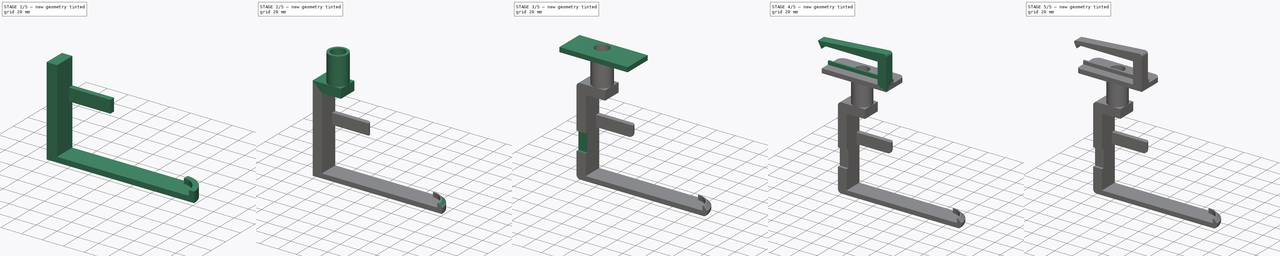
[diagram: build sequence overview — one tinted view per stage of 5, left to right]
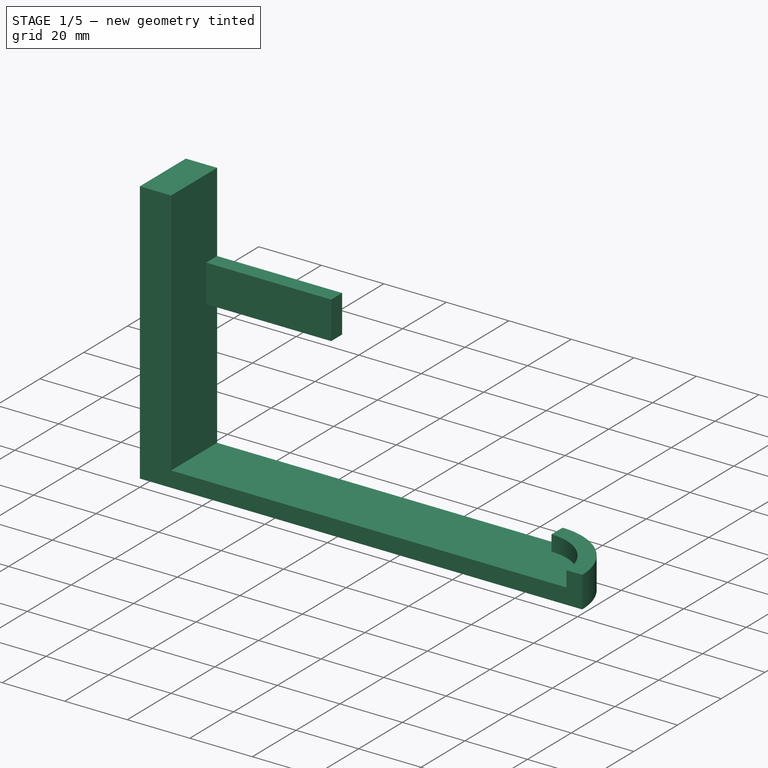
[diagram: stage 1 of 5 — iso view after this stage's code; geometry added in this stage tinted green]
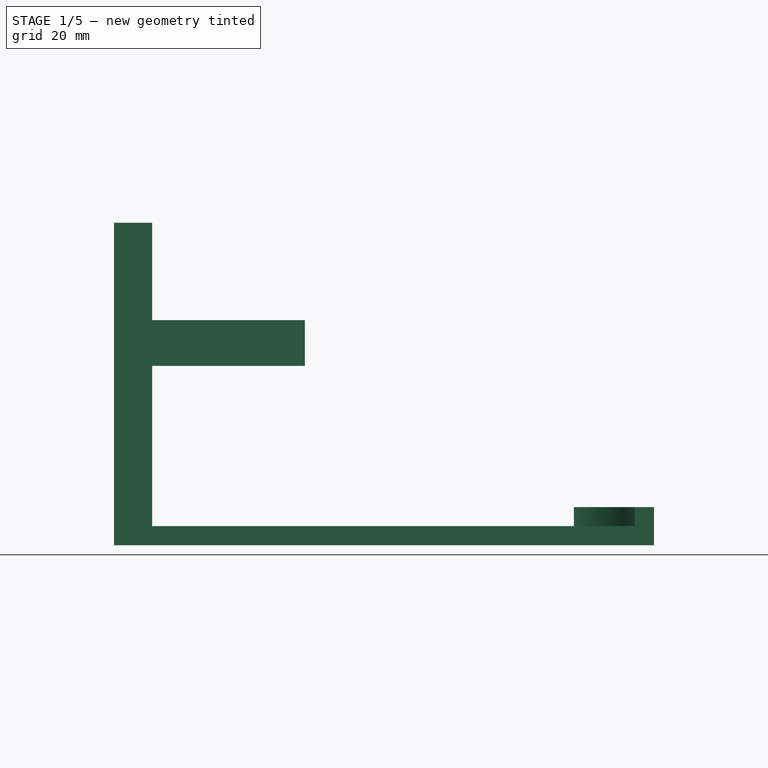
[diagram: stage 1 of 5 — front view after this stage's code; geometry added in this stage tinted green]
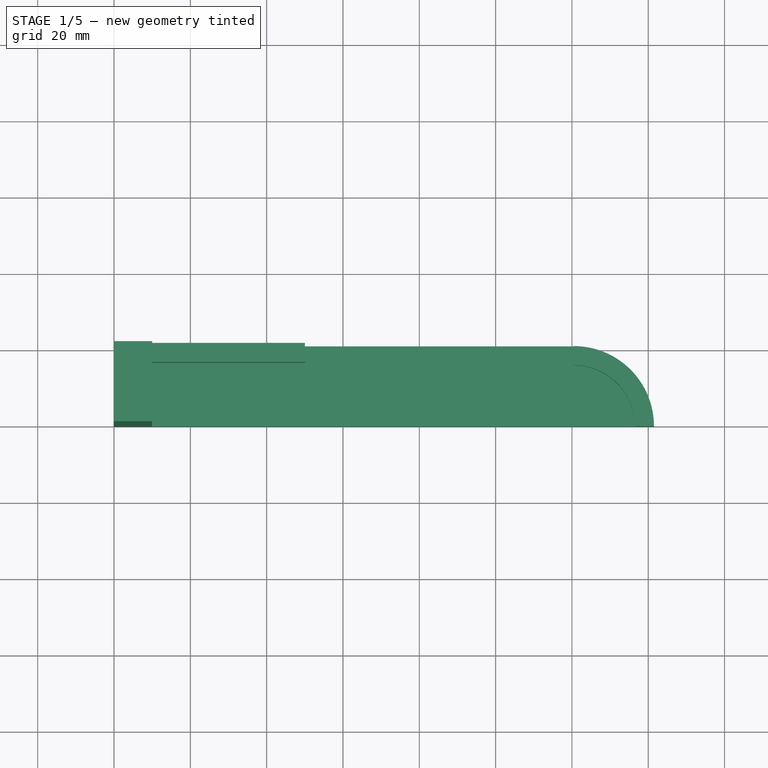
[diagram: stage 1 of 5 — top view after this stage's code; geometry added in this stage tinted green]
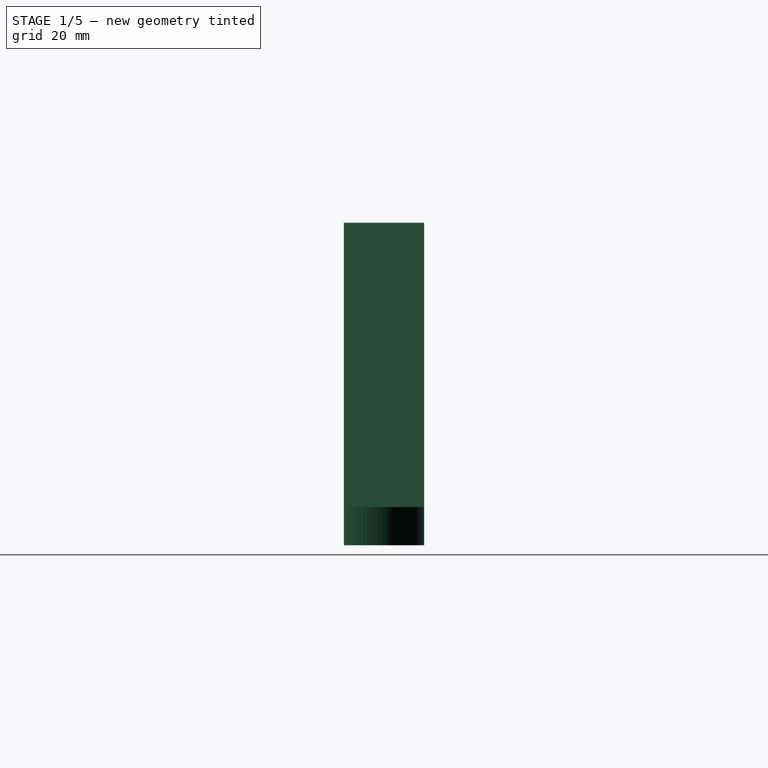
[diagram: stage 1 of 5 — right view after this stage's code; geometry added in this stage tinted green]
FCSTD DOCUMENT  (FreeCAD 1.0R)
Label: minisforum_x1_holder
License: All rights reserved
LicenseURL: https://en.wikipedia.org/wiki/All_rights_reserved
objects: PartDesign::Fillet×13, Sketcher::SketchObject×12, PartDesign::Pad×10, PartDesign::Pocket×2, Spreadsheet::Sheet×1, PartDesign::Chamfer×1, App::DocumentObjectGroup×1, PartDesign::Body×1
note: 103 computed .brp shape members not serialized (recipe doc carries the construction recipe); baked Part::Feature solids carry a one-line shape summary decoded from their .brp

FEATURE [Sketcher::SketchObject] Sketch
  ArcFitTolerance = 1e-06
  AttachmentSupport = -> [XY_Plane]
  FullyConstrained = true
  MakeInternals = false
  MapMode = 5
  expr: .Constraints.latch_edge_thickness = Spreadsheet.latch_edge_thickness
  expr: Constraints[14] = Spreadsheet.back_pillar_thickness
  sketch-geometry (11):
    g0: LineSegment StartX=0 StartY=21 StartZ=0 EndX=0 EndY=0 EndZ=0
    g1: ArcOfCircle CenterX=120.5 CenterY=0 CenterZ=0 NormalX=0 NormalY=0 NormalZ=1 AngleXU=0 Radius=21 StartAngle=0 EndAngle=1.5708
    g2: LineSegment [constr] StartX=120.5 StartY=21 StartZ=0 EndX=120.5 EndY=0 EndZ=0
    g3: LineSegment StartX=0 StartY=0 StartZ=0 EndX=10 EndY=0 EndZ=0
    g4: LineSegment StartX=0 StartY=21 StartZ=0 EndX=10 EndY=21 EndZ=0
    g5: LineSegment StartX=10 StartY=21 StartZ=0 EndX=120.5 EndY=21 EndZ=0
    g6: LineSegment [constr] StartX=10 StartY=21 StartZ=0 EndX=10 EndY=0 EndZ=0
    g7: LineSegment StartX=141.5 StartY=0 StartZ=0 EndX=136.5 EndY=0 EndZ=0
    g8: LineSegment StartX=136.5 StartY=0 StartZ=0 EndX=10 EndY=0 EndZ=0
    g9: LineSegment [constr] StartX=136.5 StartY=0 StartZ=0 EndX=136.5 EndY=21 EndZ=0
    g10: LineSegment [constr] StartX=120.5 StartY=21 StartZ=0 EndX=136.5 EndY=21 EndZ=0
  constraints (29):
    c: Vertical(g0)
    c: Coincident(g2,g1)
    c: Coincident(g2,g1)
    c: Vertical(g2)
    c: Coincident(g3,g0)
    c: PointOnObject(g3,g-1)
    c: Coincident(g4,g0)
    c: Horizontal(g4)
    c: Coincident(g5,g4)
    c: Coincident(g5,g1)
    c: Horizontal(g5)
    c: Coincident(g6,g4)
    c: Coincident(g6,g3)
    c: Vertical(g6)
    c: Distance(g3,g3) = 10
    c: Coincident(g7,g1)
    c: PointOnObject(g7,g-1)
    c: Coincident(g8,g7)
    c: Coincident(g8,g3)
    c: Distance(g7,g7) = 5  'latch_edge_thickness'
    c: DistanceX(g8,g8) = 126.5
    c: PointOnObject(g1,g-1)
    c: PointOnObject(g1,g-1)
    c: Vertical(g9)
    c: Coincident(g9,g7)
    c: Tangent(g10,g1) = 1.5708
    c: Coincident(g10,g9)
    c: DistanceX(g10,g10) = 16
    c: Coincident(g0,g-1)
FEATURE [PartDesign::Pad] Pad
  Direction = (0,0,1)
  Length = 5
  Length2 = 10
  Profile = -> Sketch
  ReferenceAxis = -> Sketch [N_Axis]
  Refine = true
  Suppressed = false
  Type = 0
FEATURE [Sketcher::SketchObject] Sketch001
  ArcFitTolerance = 1e-06
  AttachmentSupport = -> [Pad]
  ExternalGeometry = -> [Pad]
  FullyConstrained = true
  MakeInternals = false
  MapMode = 5
  Placement = pos=(0,0,5) rot=(0,0,1;0rad)
  expr: Constraints[10] = Spreadsheet.back_pillar_thickness
  sketch-geometry (4):
    g0: LineSegment StartX=0 StartY=0 StartZ=0 EndX=10 EndY=0 EndZ=0
    g1: LineSegment StartX=10 StartY=0 StartZ=0 EndX=10 EndY=21 EndZ=0
    g2: LineSegment StartX=10 StartY=21 StartZ=0 EndX=0 EndY=21 EndZ=0
    g3: LineSegment StartX=0 StartY=21 StartZ=0 EndX=0 EndY=0 EndZ=0
  constraints (11):
    c: Coincident(g0,g1)
    c: Coincident(g1,g2)
    c: Coincident(g2,g3)
    c: Coincident(g3,g0)
    c: Horizontal(g0)
    c: Horizontal(g2)
    c: Vertical(g1)
    c: Vertical(g3)
    c: Coincident(g0,g-1)
    c: PointOnObject(g1,g-3)
    c: Distance(g2,g2) = 10
FEATURE [Spreadsheet::Sheet] Spreadsheet
  cells = A1(back_pillar_thickness)==10 mm; A2(latch_edge_thickness)==5 mm; A3(bottom_plane_thickness)==10 mm
FEATURE [PartDesign::Pad] Pad001
  BaseFeature = -> Pad
  Direction = (0,0,1)
  Length = 54
  Length2 = 10
  Profile = -> Sketch001
  ReferenceAxis = -> Sketch001 [N_Axis]
  Refine = true
  Suppressed = false
  Type = 0
FEATURE [Sketcher::SketchObject] Sketch002
  ArcFitTolerance = 1e-06
  AttachmentSupport = -> [Pad001]
  ExternalGeometry = -> [Pad001]
  FullyConstrained = true
  MakeInternals = false
  MapMode = 5
  Placement = pos=(0,0,5) rot=(0,0,1;0rad)
  expr: Constraints[4] = Spreadsheet.latch_edge_thickness
  sketch-geometry (5):
    g0: LineSegment [constr] StartX=120.5 StartY=0 StartZ=0 EndX=120.5 EndY=16 EndZ=0
    g1: ArcOfCircle CenterX=120.5 CenterY=0 CenterZ=0 NormalX=0 NormalY=0 NormalZ=1 AngleXU=0 Radius=16 StartAngle=0 EndAngle=1.5708
    g2: LineSegment StartX=136.5 StartY=0 StartZ=0 EndX=141.5 EndY=0 EndZ=0
    g3: ArcOfCircle CenterX=120.5 CenterY=0 CenterZ=0 NormalX=0 NormalY=0 NormalZ=1 AngleXU=0 Radius=21 StartAngle=0 EndAngle=1.5708
    g4: LineSegment StartX=120.5 StartY=16 StartZ=0 EndX=120.5 EndY=21 EndZ=0
  constraints (13):
    c: Coincident(g0,g-4)
    c: Vertical(g0)
    c: Coincident(g1,g0)
    c: PointOnObject(g1,g-1)
    c: Distance(g0,g3) = 5
    c: Coincident(g2,g1)
    c: Coincident(g3,g2)
    c: Coincident(g2,g-4)
    c: Coincident(g3,g0)
    c: Coincident(g4,g1)
    c: Coincident(g4,g3)
    c: Vertical(g4)
    c: Coincident(g1,g0)
FEATURE [PartDesign::Pad] Pad002
  BaseFeature = -> Pad001
  Direction = (0,0,1)
  Length = 5
  Length2 = 10
  Profile = -> Sketch002
  ReferenceAxis = -> Sketch002 [N_Axis]
  Refine = true
  Suppressed = false
  Type = 0
FEATURE [Sketcher::SketchObject] Sketch004
  ArcFitTolerance = 1e-06
  AttachmentSupport = -> [Pad002]
  ExternalGeometry = -> [Pad002]
  FullyConstrained = true
  MakeInternals = false
  MapMode = 5
  Placement = pos=(10,0,0) rot=(0.57735,0.57735,0.57735;2.0944rad)
  expr: Constraints[9] = Spreadsheet.latch_edge_thickness
  sketch-geometry (4):
    g0: LineSegment StartX=21 StartY=59 StartZ=0 EndX=16 EndY=59 EndZ=0
    g1: LineSegment StartX=16 StartY=59 StartZ=0 EndX=16 EndY=47 EndZ=0
    g2: LineSegment StartX=16 StartY=47 StartZ=0 EndX=21 EndY=47 EndZ=0
    g3: LineSegment StartX=21 StartY=47 StartZ=0 EndX=21 EndY=59 EndZ=0
  constraints (11):
    c: Coincident(g0,g1)
    c: Coincident(g1,g2)
    c: Coincident(g2,g3)
    c: Coincident(g3,g0)
    c: Horizontal(g0)
    c: Horizontal(g2)
    c: Vertical(g1)
    c: Vertical(g3)
    c: Coincident(g0,g-3)
    c: Distance(g0,g0) = 5
    c: Distance(g3,g3) = 12
FEATURE [PartDesign::Pad] Pad003
  BaseFeature = -> Pad002
  Direction = (1,0,0)
  Length = 40
  Length2 = 10
  Profile = -> Sketch004
  ReferenceAxis = -> Sketch004 [N_Axis]
  Refine = true
  Suppressed = false
  Type = 0
FEATURE [Sketcher::SketchObject] Sketch005
  ArcFitTolerance = 1e-06
  AttachmentSupport = -> [Pad003]
  ExternalGeometry = -> [Pad003]
  FullyConstrained = true
  MakeInternals = false
  MapMode = 5
  Placement = pos=(0,0,59) rot=(0,0,1;0rad)
  sketch-geometry (4):
    g0: LineSegment StartX=0 StartY=0 StartZ=0 EndX=10 EndY=0 EndZ=0
    g1: LineSegment StartX=10 StartY=0 StartZ=0 EndX=10 EndY=21 EndZ=0
    g2: LineSegment StartX=10 StartY=21 StartZ=0 EndX=0 EndY=21 EndZ=0
    g3: LineSegment StartX=0 StartY=21 StartZ=0 EndX=0 EndY=0 EndZ=0
  constraints (11):
    c: Coincident(g0,g1)
    c: Coincident(g1,g2)
    c: Coincident(g2,g3)
    c: Coincident(g3,g0)
    c: Horizontal(g0)
    c: Horizontal(g2)
    c: Vertical(g1)
    c: Vertical(g3)
    c: Coincident(g0,g-1)
    c: PointOnObject(g1,g-4)
    c: PointOnObject(g-3,g1)
FEATURE [PartDesign::Pad] Pad004
  BaseFeature = -> Pad003
  Direction = (0,0,1)
  Length = 25.5
  Length2 = 10
  Profile = -> Sketch005
  ReferenceAxis = -> Sketch005 [N_Axis]
  Refine = true
  Suppressed = false
  Type = 0
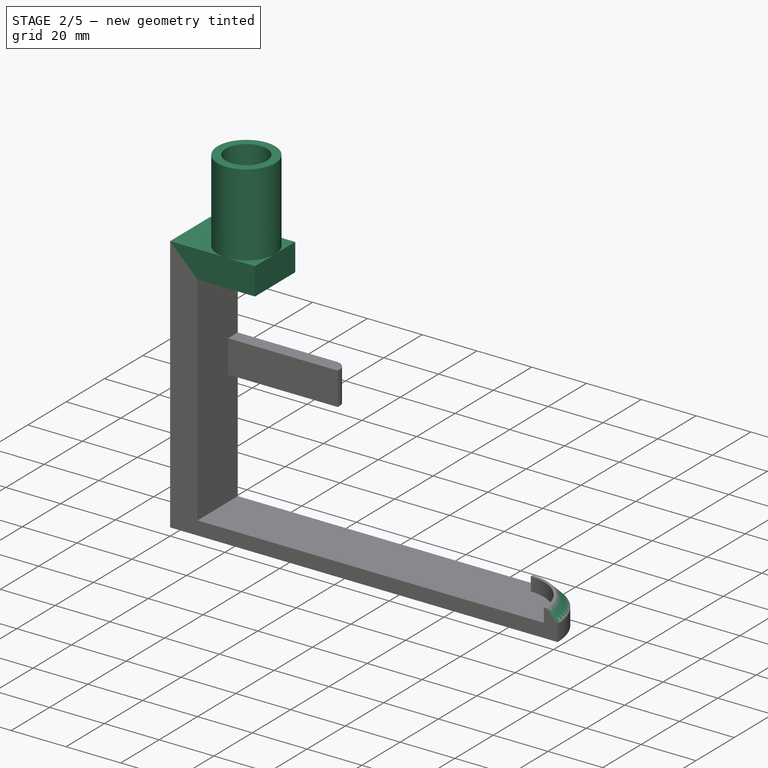
[diagram: stage 2 of 5 — iso view after this stage's code; geometry added in this stage tinted green]
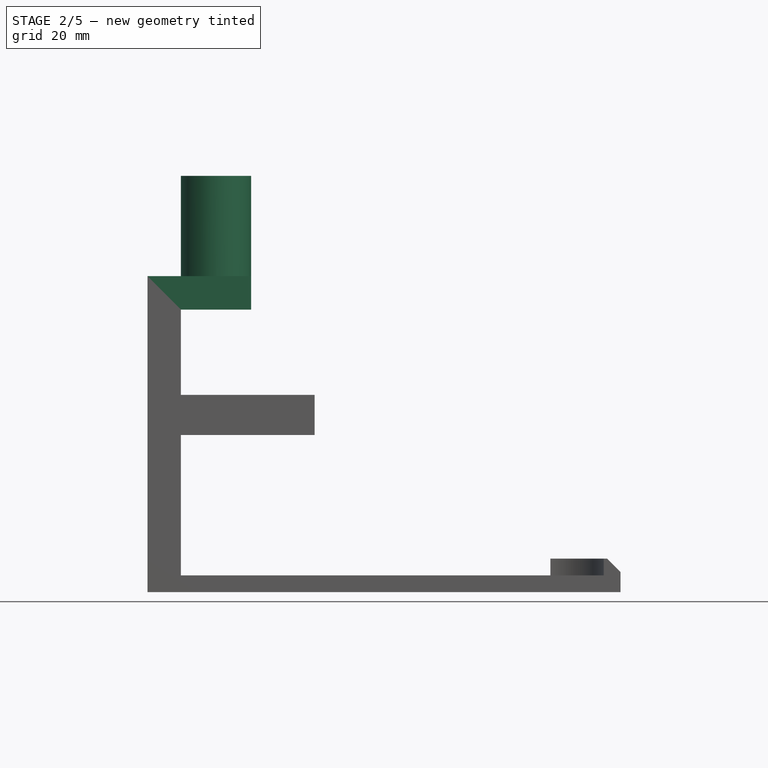
[diagram: stage 2 of 5 — front view after this stage's code; geometry added in this stage tinted green]
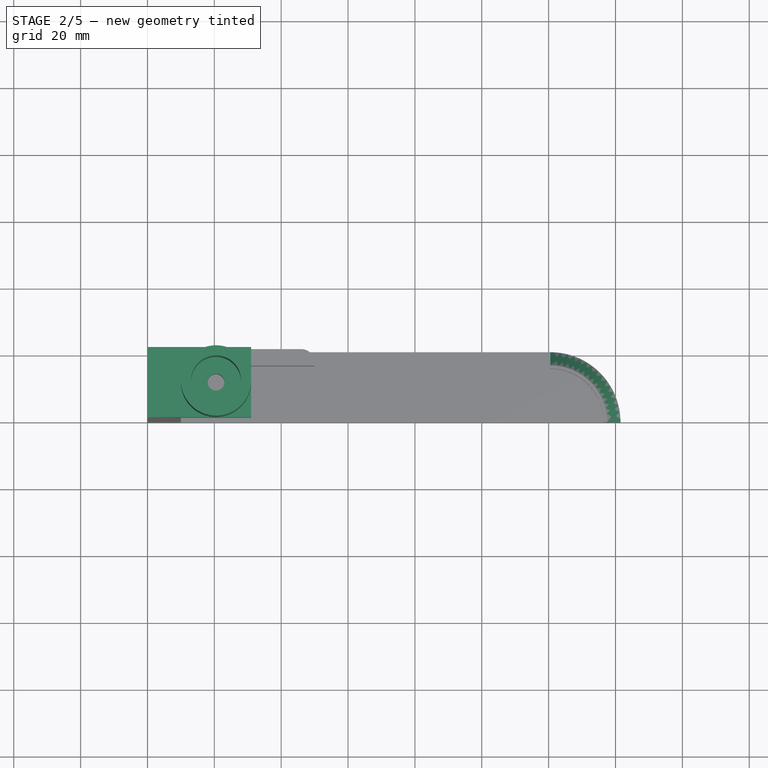
[diagram: stage 2 of 5 — top view after this stage's code; geometry added in this stage tinted green]
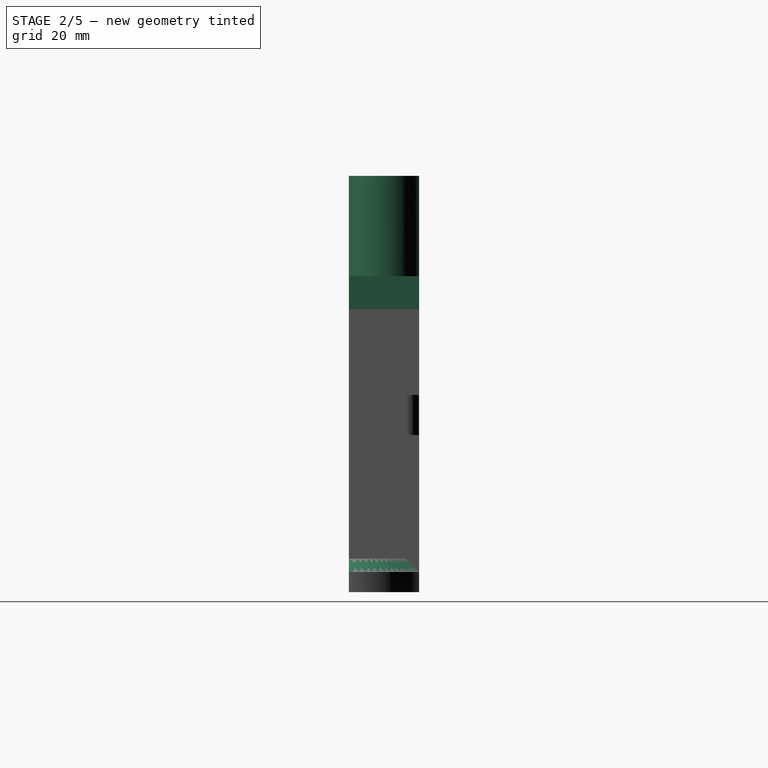
[diagram: stage 2 of 5 — right view after this stage's code; geometry added in this stage tinted green]
FEATURE [Sketcher::SketchObject] Sketch006
  ArcFitTolerance = 1e-06
  AttachmentSupport = -> [Pad004]
  ExternalGeometry = -> [Pad004]
  FullyConstrained = true
  MakeInternals = false
  MapMode = 5
  Placement = pos=(0,0,84.5) rot=(0,0,1;0rad)
  sketch-geometry (5):
    g0: LineSegment StartX=0 StartY=0 StartZ=0 EndX=31 EndY=0 EndZ=0
    g1: LineSegment StartX=31 StartY=0 StartZ=0 EndX=31 EndY=21 EndZ=0
    g2: LineSegment StartX=0 StartY=21 StartZ=0 EndX=0 EndY=0 EndZ=0
    g3: LineSegment StartX=0 StartY=21 StartZ=0 EndX=10 EndY=21 EndZ=0
    g4: LineSegment StartX=10 StartY=21 StartZ=0 EndX=31 EndY=21 EndZ=0
  constraints (13):
    c: Coincident(g0,g1)
    c: Coincident(g2,g0)
    c: Horizontal(g0)
    c: Vertical(g1)
    c: Vertical(g2)
    c: Coincident(g0,g-1)
    c: Coincident(g3,g2)
    c: Coincident(g3,g-3)
    c: Horizontal(g3)
    c: Coincident(g4,g3)
    c: Coincident(g4,g1)
    c: Horizontal(g4)
    c: Equal(g4,g1)
FEATURE [PartDesign::Pad] Pad005
  BaseFeature = -> Pad004
  Direction = (0,0,1)
  Length = 10
  Length2 = 10
  Profile = -> Sketch006
  ReferenceAxis = -> Sketch006 [N_Axis]
  Refine = true
  Suppressed = false
  Type = 0
  expr: Length = Spreadsheet.bottom_plane_thickness
FEATURE [Sketcher::SketchObject] Sketch007
  ArcFitTolerance = 1e-06
  AttachmentSupport = -> [Pad005]
  ExternalGeometry = -> [Pad005]
  FullyConstrained = true
  MakeInternals = false
  MapMode = 5
  Placement = pos=(0,0,94.5) rot=(0,0,1;0rad)
  sketch-geometry (8):
    g0: LineSegment [constr] StartX=31 StartY=21 StartZ=0 EndX=10 EndY=21 EndZ=0
    g1: LineSegment [constr] StartX=10 StartY=21 StartZ=0 EndX=10 EndY=0 EndZ=0
    g2: LineSegment [constr] StartX=10 StartY=0 StartZ=0 EndX=31 EndY=0 EndZ=0
    g3: LineSegment [constr] StartX=31 StartY=0 StartZ=0 EndX=31 EndY=21 EndZ=0
    g4: LineSegment [constr] StartX=10 StartY=21 StartZ=0 EndX=20.5 EndY=10.5 EndZ=0
    g5: LineSegment [constr] StartX=20.5 StartY=10.5 StartZ=0 EndX=31 EndY=0 EndZ=0
    g6: LineSegment [constr] StartX=20.5 StartY=10.5 StartZ=0 EndX=10 EndY=0 EndZ=0
    g7: Circle CenterX=20.5 CenterY=10.5 CenterZ=0 NormalX=0 NormalY=0 NormalZ=1 AngleXU=0 Radius=2.5
  constraints (20):
    c: Coincident(g0,g1)
    c: Coincident(g1,g2)
    c: Coincident(g2,g3)
    c: Coincident(g3,g0)
    c: Horizontal(g0)
    c: Horizontal(g2)
    c: Vertical(g1)
    c: Vertical(g3)
    c: Coincident(g0,g-3)
    c: PointOnObject(g1,g-1)
    c: Equal(g1,g0)
    c: Coincident(g4,g0)
    c: Coincident(g5,g4)
    c: Coincident(g5,g2)
    c: Coincident(g6,g4)
    c: Coincident(g6,g1)
    c: Equal(g6,g4)
    c: Equal(g4,g5)
    c: Coincident(g7,g4)
    c: Diameter(g7) = 5
FEATURE [PartDesign::Pocket] Pocket
  BaseFeature = -> Pad005
  Direction = (0,0,-1)
  Length = 10
  Length2 = 5
  Profile = -> Sketch007
  ReferenceAxis = -> Sketch007 [N_Axis]
  Refine = true
  Suppressed = false
  Type = 0
  expr: Length = Spreadsheet.bottom_plane_thickness
FEATURE [Sketcher::SketchObject] Sketch008
  ArcFitTolerance = 1e-06
  AttachmentSupport = -> [Pocket]
  ExternalGeometry = -> [Pocket]
  FullyConstrained = true
  MakeInternals = false
  MapMode = 5
  Placement = pos=(0,0,94.5) rot=(0,0,1;0rad)
  sketch-geometry (4):
    g0: Circle CenterX=20.5 CenterY=10.5 CenterZ=0 NormalX=0 NormalY=0 NormalZ=1 AngleXU=0 Radius=10.5
    g1: Circle CenterX=20.5 CenterY=10.5 CenterZ=0 NormalX=0 NormalY=0 NormalZ=1 AngleXU=0 Radius=7.5
    g2: LineSegment [constr] StartX=20.5 StartY=10.5 StartZ=0 EndX=20.5 EndY=18 EndZ=0
    g3: LineSegment [constr] StartX=20.5 StartY=18 StartZ=0 EndX=20.5 EndY=21 EndZ=0
  constraints (10):
    c: Coincident(g0,g-3)
    c: Tangent(g0,g-4)
    c: Coincident(g1,g0)
    c: Coincident(g2,g0)
    c: PointOnObject(g2,g1)
    c: Vertical(g2)
    c: Coincident(g3,g2)
    c: PointOnObject(g3,g0)
    c: Vertical(g3)
    c: Distance(g3,g3) = 3
FEATURE [PartDesign::Pad] Pad006
  BaseFeature = -> Pocket
  Direction = (0,0,1)
  Length = 30
  Length2 = 10
  Profile = -> Sketch008
  ReferenceAxis = -> Sketch008 [N_Axis]
  Refine = true
  Suppressed = false
  Type = 0
FEATURE [PartDesign::Chamfer] Chamfer
  Angle = 45
  Base = -> Pad006 [Edge5]
  BaseFeature = -> Pad006
  ChamferType = 0
  FlipDirection = false
  Refine = true
  Size = 4
  Size2 = 1
  SupportTransform = false
  Suppressed = false
  UseAllEdges = false
FEATURE [App::DocumentObjectGroup] Measurements
FEATURE [PartDesign::Fillet] Fillet
  Base = -> Chamfer [Edge19]
  BaseFeature = -> Chamfer
  Radius = 4
  Refine = true
  SupportTransform = false
  Suppressed = false
  UseAllEdges = false
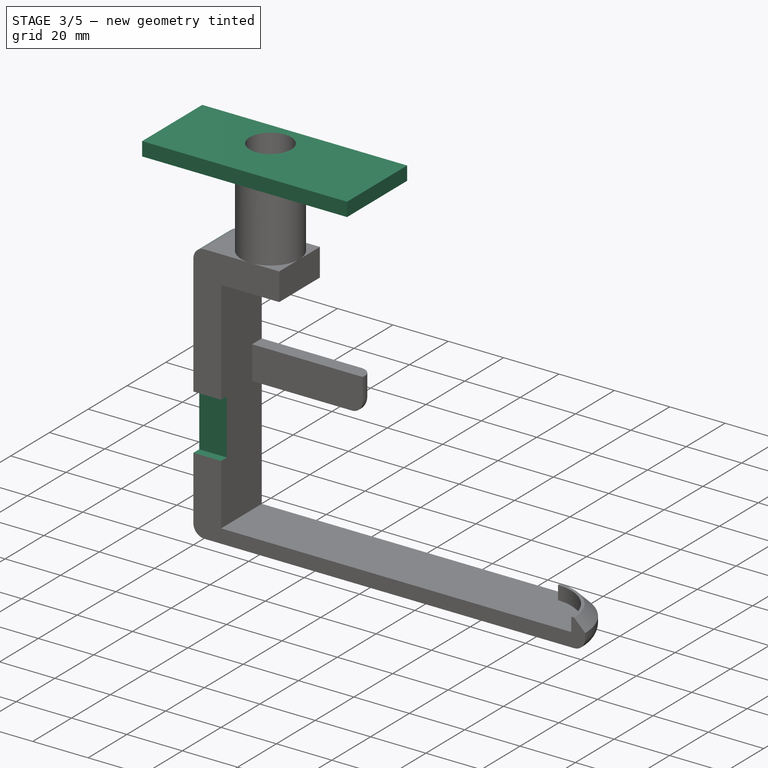
[diagram: stage 3 of 5 — iso view after this stage's code; geometry added in this stage tinted green]
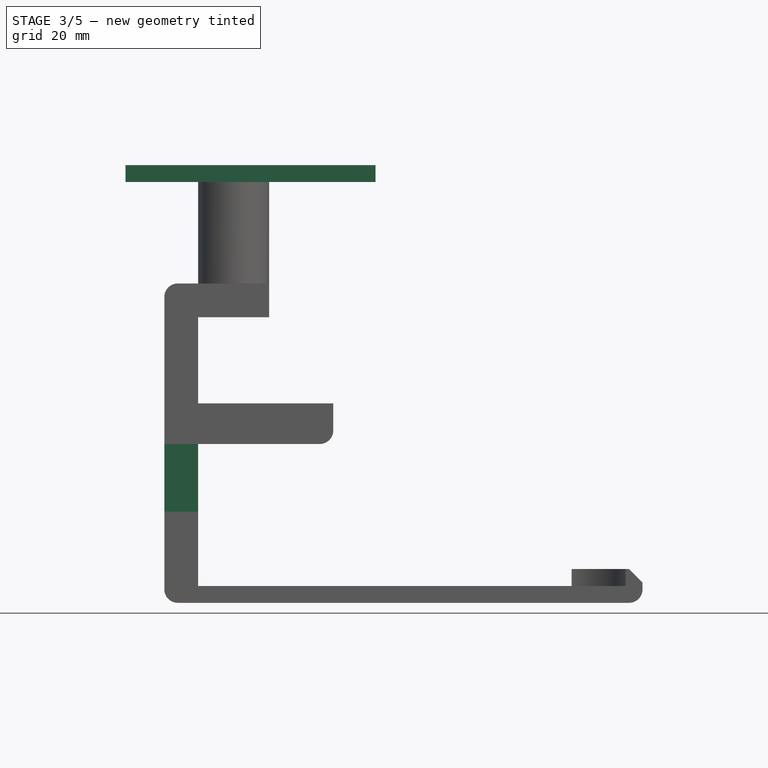
[diagram: stage 3 of 5 — front view after this stage's code; geometry added in this stage tinted green]
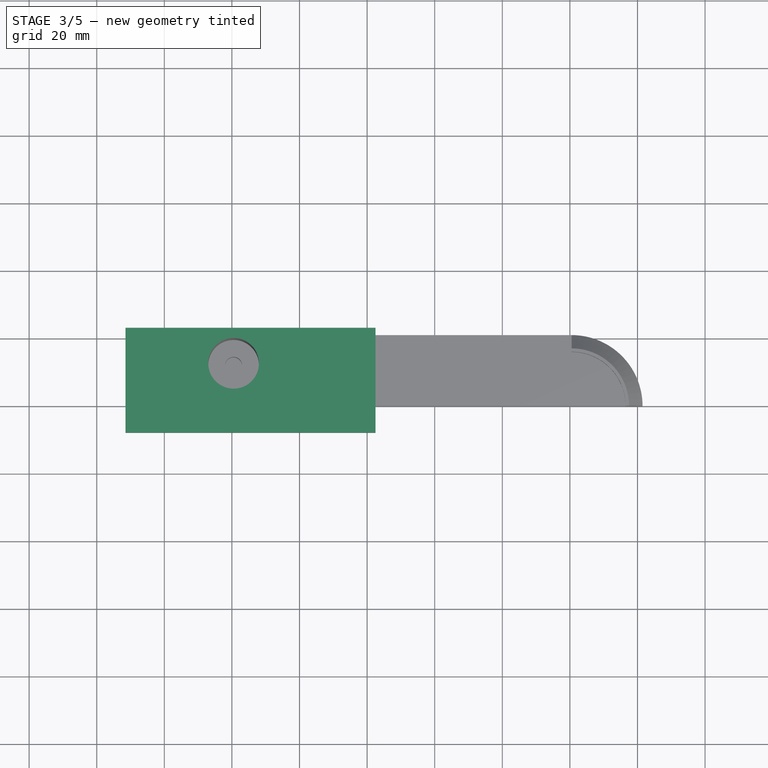
[diagram: stage 3 of 5 — top view after this stage's code; geometry added in this stage tinted green]
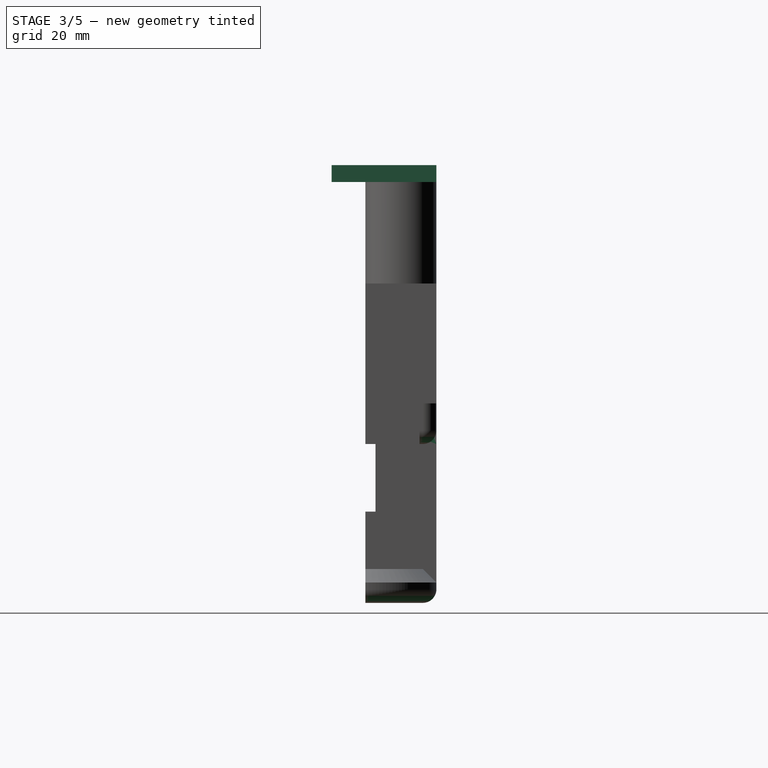
[diagram: stage 3 of 5 — right view after this stage's code; geometry added in this stage tinted green]
FEATURE [PartDesign::Fillet] Fillet001
  Base = -> Fillet [Edge44]
  BaseFeature = -> Fillet
  Radius = 4
  Refine = true
  SupportTransform = false
  Suppressed = false
  UseAllEdges = false
FEATURE [PartDesign::Fillet] Fillet002
  Base = -> Fillet001 [Edge4]
  BaseFeature = -> Fillet001
  Radius = 4
  Refine = true
  SupportTransform = false
  Suppressed = false
  UseAllEdges = false
FEATURE [Sketcher::SketchObject] Sketch009
  ArcFitTolerance = 1e-06
  AttachmentSupport = -> [Fillet002]
  ExternalGeometry = -> [Fillet002]
  FullyConstrained = true
  MakeInternals = false
  MapMode = 5
  Placement = pos=(10,0,0) rot=(0.57735,0.57735,0.57735;2.0944rad)
  sketch-geometry (6):
    g0: LineSegment [constr] StartX=16 StartY=59 StartZ=0 EndX=0 EndY=59 EndZ=0
    g1: LineSegment StartX=0 StartY=47 StartZ=0 EndX=0 EndY=27 EndZ=0
    g2: LineSegment StartX=0 StartY=27 StartZ=0 EndX=3 EndY=27 EndZ=0
    g3: LineSegment StartX=3 StartY=27 StartZ=0 EndX=3 EndY=47 EndZ=0
    g4: LineSegment StartX=3 StartY=47 StartZ=0 EndX=0 EndY=47 EndZ=0
    g5: LineSegment [constr] StartX=3 StartY=47 StartZ=0 EndX=3 EndY=59 EndZ=0
  constraints (18):
    c: PointOnObject(g0,g-2)
    c: Horizontal(g0)
    c: Coincident(g1,g2)
    c: Coincident(g2,g3)
    c: Coincident(g3,g4)
    c: Coincident(g4,g1)
    c: Vertical(g1)
    c: Vertical(g3)
    c: Horizontal(g2)
    c: Horizontal(g4)
    c: PointOnObject(g1,g-2)
    c: Distance(g2,g2) = 3
    c: Coincident(g5,g3)
    c: PointOnObject(g5,g0)
    c: Vertical(g5)
    c: DistanceY(g5,g5) = 12
    c: DistanceY(g1,g1) = 20
    c: Coincident(g0,g-3)
FEATURE [PartDesign::Pocket] Pocket001
  BaseFeature = -> Fillet002
  Direction = (-1,0,0)
  Length = 10
  Length2 = 5
  Profile = -> Sketch009
  ReferenceAxis = -> Sketch009 [N_Axis]
  Refine = true
  Suppressed = false
  Type = 0
  expr: Length = Spreadsheet.back_pillar_thickness
FEATURE [Sketcher::SketchObject] Sketch010
  ArcFitTolerance = 1e-06
  AttachmentSupport = -> [Pocket001]
  ExternalGeometry = -> [Pocket001]
  FullyConstrained = true
  MakeInternals = false
  MapMode = 5
  Placement = pos=(0,0,124.5) rot=(0,0,1;0rad)
  expr: Constraints[23] = 5 mm + Spreadsheet.latch_edge_thickness
  sketch-geometry (11):
    g0: LineSegment StartX=-11.5 StartY=-10 StartZ=0 EndX=52.5 EndY=-10 EndZ=0
    g1: LineSegment [constr] StartX=52.5 StartY=-10 StartZ=0 EndX=52.5 EndY=21 EndZ=0
    g2: LineSegment StartX=-11.5 StartY=21 StartZ=0 EndX=-11.5 EndY=-10 EndZ=0
    g3: Circle CenterX=20.5 CenterY=10.5 CenterZ=0 NormalX=0 NormalY=0 NormalZ=1 AngleXU=0 Radius=7.5
    g4: LineSegment [constr] StartX=-11.5 StartY=21 StartZ=0 EndX=20.5 EndY=10.5 EndZ=0
    g5: LineSegment StartX=52.5 StartY=21 StartZ=0 EndX=62.5 EndY=21 EndZ=0
    g6: LineSegment StartX=62.5 StartY=21 StartZ=0 EndX=62.5 EndY=-10 EndZ=0
    g7: LineSegment StartX=62.5 StartY=-10 StartZ=0 EndX=52.5 EndY=-10 EndZ=0
    g8: LineSegment [constr] StartX=20.5 StartY=10.5 StartZ=0 EndX=52.5 EndY=21 EndZ=0
    g9: LineSegment [constr] StartX=0 StartY=0 StartZ=0 EndX=0 EndY=-10 EndZ=0
    g10: LineSegment StartX=-11.5 StartY=21 StartZ=0 EndX=52.5 EndY=21 EndZ=0
  constraints (29):
    c: Coincident(g0,g1)
    c: Coincident(g2,g0)
    c: Horizontal(g0)
    c: Vertical(g1)
    c: Vertical(g2)
    c: Coincident(g3,g-3)
    c: Equal(g3,g-3)
    c: DistanceX(g0,g0) = 64
    c: Coincident(g4,g3)
    c: Coincident(g1,g5)
    c: Horizontal(g5)
    c: Coincident(g5,g6)
    c: Vertical(g6)
    c: Coincident(g6,g7)
    c: Coincident(g7,g0)
    c: Horizontal(g7)
    c: Distance(g5,g5) = 10
    c: Coincident(g8,g3)
    c: Coincident(g8,g1)
    c: Equal(g8,g4)
    c: Coincident(g9,g-1)
    c: PointOnObject(g9,g0)
    c: Vertical(g9)
    c: Distance(g9,g9) = 10
    c: Coincident(g10,g1)
    c: Coincident(g4,g2)
    c: Coincident(g2,g10)
    c: PointOnObject(g-4,g10)
    c: Horizontal(g10)
FEATURE [PartDesign::Pad] Pad007
  BaseFeature = -> Pocket001
  Direction = (0,0,1)
  Length = 5
  Length2 = 10
  Profile = -> Sketch010
  ReferenceAxis = -> Sketch010 [N_Axis]
  Refine = true
  Suppressed = false
  Type = 0
FEATURE [PartDesign::Fillet] Fillet003
  Base = -> Pad007 [Edge37]
  BaseFeature = -> Pad007
  Radius = 4
  Refine = true
  SupportTransform = false
  Suppressed = false
  UseAllEdges = false
FEATURE [PartDesign::Fillet] Fillet004
  Base = -> Fillet003 [Edge11]
  BaseFeature = -> Fillet003
  Radius = 4
  Refine = true
  SupportTransform = false
  Suppressed = false
  UseAllEdges = false
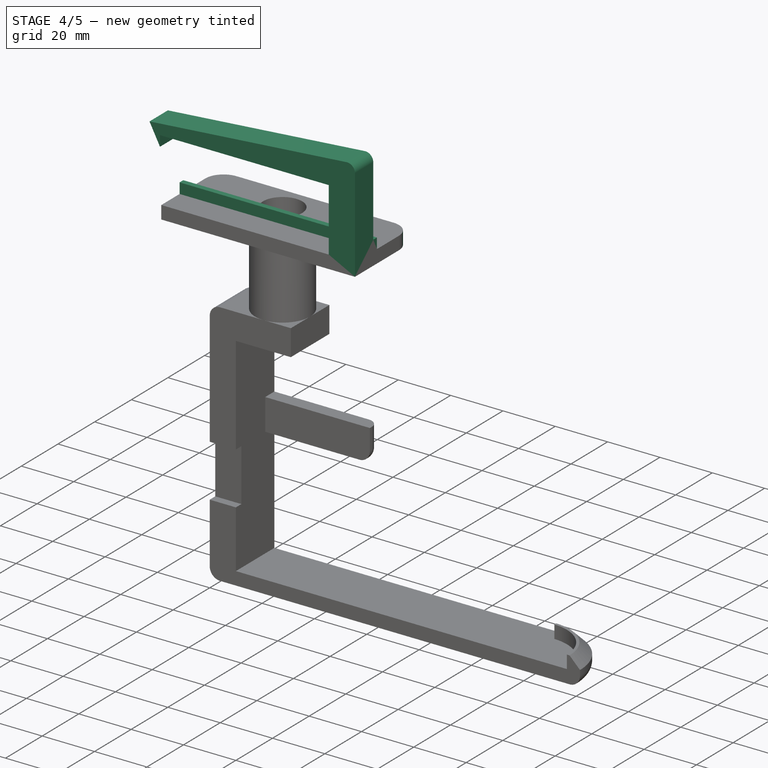
[diagram: stage 4 of 5 — iso view after this stage's code; geometry added in this stage tinted green]
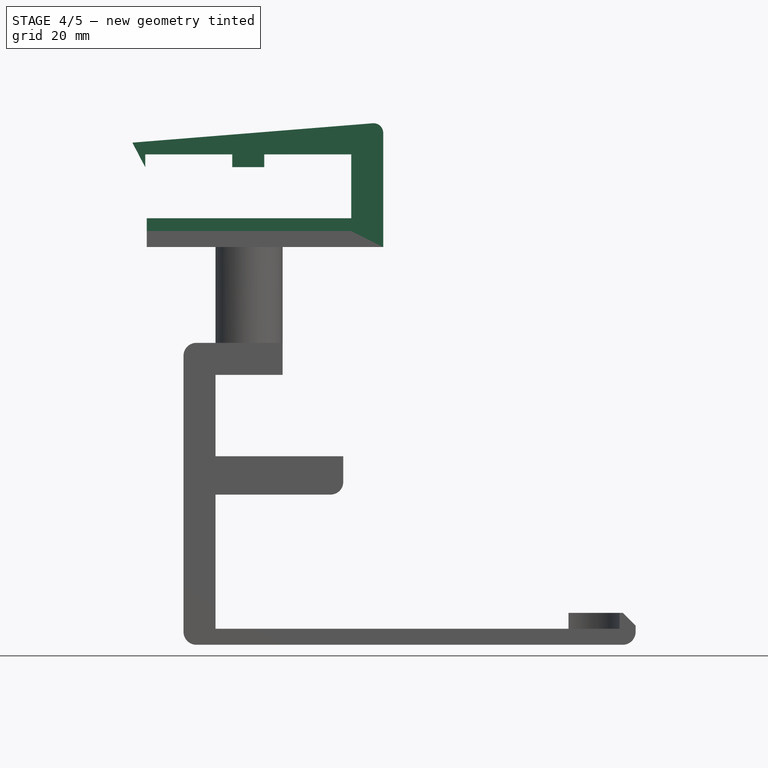
[diagram: stage 4 of 5 — front view after this stage's code; geometry added in this stage tinted green]
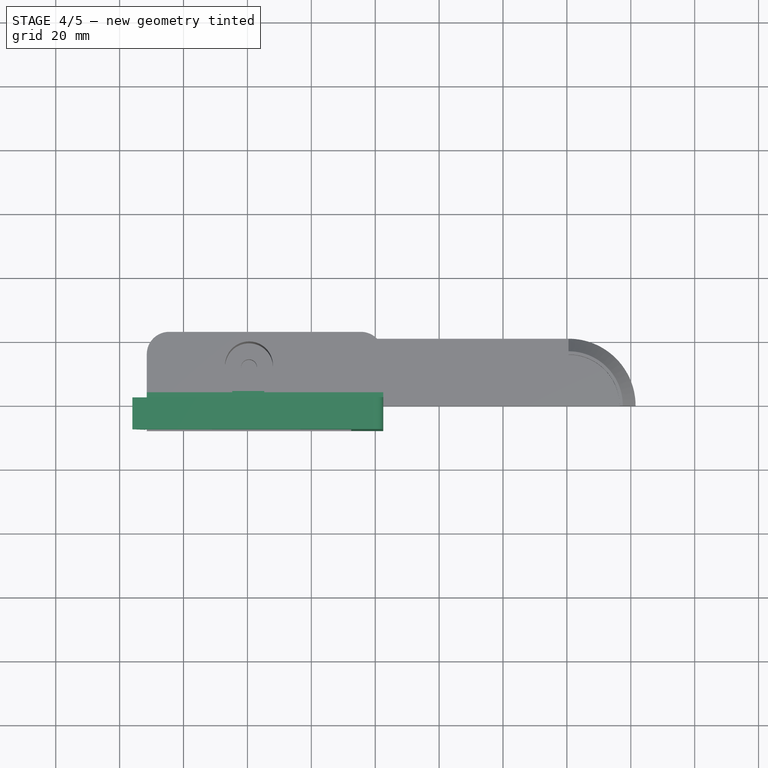
[diagram: stage 4 of 5 — top view after this stage's code; geometry added in this stage tinted green]
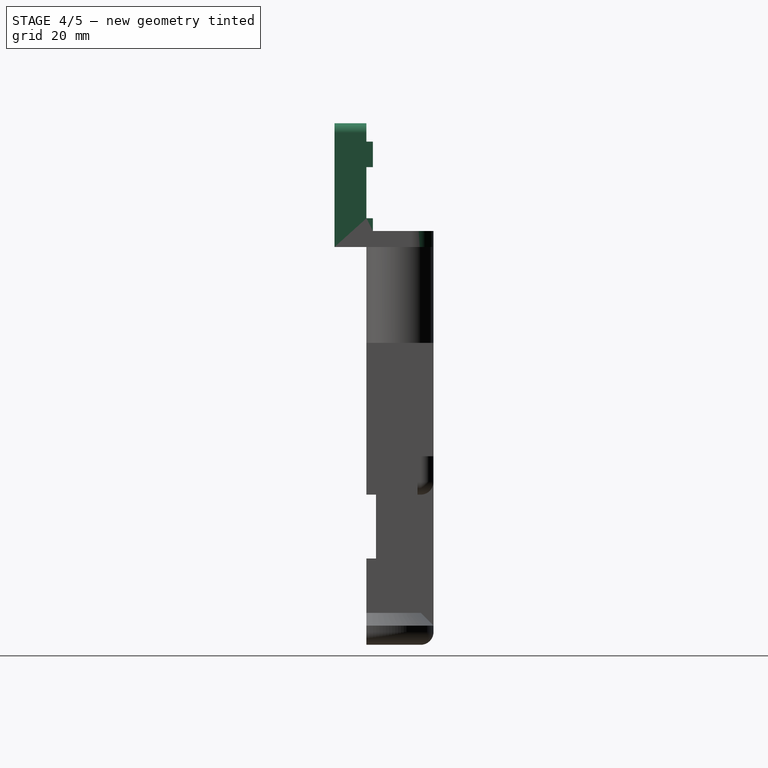
[diagram: stage 4 of 5 — right view after this stage's code; geometry added in this stage tinted green]
FEATURE [Sketcher::SketchObject] Sketch011
  ArcFitTolerance = 1e-06
  AttachmentSupport = -> [Fillet004]
  ExternalGeometry = -> [Fillet004]
  FullyConstrained = true
  MakeInternals = false
  MapMode = 5
  Placement = pos=(0,-10,0) rot=(1,0,0;1.5708rad)
  sketch-geometry (13):
    g0: LineSegment StartX=62.5 StartY=163.5 StartZ=0 EndX=-16 EndY=157.178 EndZ=0
    g1: LineSegment StartX=-16 StartY=157.178 StartZ=0 EndX=-12 EndY=149.5 EndZ=0
    g2: LineSegment StartX=-12 StartY=149.5 StartZ=0 EndX=-12 EndY=153.5 EndZ=0
    g3: LineSegment StartX=-12 StartY=153.5 StartZ=0 EndX=52.5 EndY=153.5 EndZ=0
    g4: LineSegment StartX=52.5 StartY=153.5 StartZ=0 EndX=52.5 EndY=129.5 EndZ=0
    g5: LineSegment StartX=52.5 StartY=129.5 StartZ=0 EndX=62.5 EndY=129.5 EndZ=0
    g6: LineSegment [constr] StartX=52.5 StartY=153.5 StartZ=0 EndX=62.5 EndY=153.5 EndZ=0
    g7: LineSegment StartX=62.5 StartY=129.5 StartZ=0 EndX=62.5 EndY=153.5 EndZ=0
    g8: LineSegment StartX=62.5 StartY=153.5 StartZ=0 EndX=62.5 EndY=163.5 EndZ=0
    g9: LineSegment [constr] StartX=-11.5 StartY=129.5 StartZ=0 EndX=-12 EndY=129.5 EndZ=0
    g10: LineSegment [constr] StartX=-12 StartY=129.5 StartZ=0 EndX=-12 EndY=149.5 EndZ=0
    g11: LineSegment [constr] StartX=-12 StartY=153.5 StartZ=0 EndX=-12 EndY=157.5 EndZ=0
    g12: LineSegment [constr] StartX=-16 StartY=157.178 StartZ=0 EndX=-12 EndY=157.178 EndZ=0
  constraints (36):
    c: Coincident(g0,g1)
    c: Coincident(g1,g2)
    c: Coincident(g2,g3)
    c: Horizontal(g3)
    c: Coincident(g3,g4)
    c: Vertical(g4)
    c: Coincident(g4,g5)
    c: Coincident(g6,g3)
    c: Horizontal(g6)
    c: Coincident(g7,g6)
    c: Vertical(g7)
    c: Coincident(g8,g6)
    c: Coincident(g8,g0)
    c: Vertical(g8)
    c: Vertical(g2)
    c: Distance(g2,g2) = 4
    c: Distance(g4,g4) = 24
    c: Coincident(g5,g7)
    c: Coincident(g5,g-3)
    c: Horizontal(g5)
    c: Distance(g5,g5) = 10
    c: Equal(g6,g8)
    c: Coincident(g9,g-3)
    c: Horizontal(g9)
    c: Coincident(g10,g9)
    c: Coincident(g10,g1)
    c: Vertical(g10)
    c: Distance(g9,g9) = 0.5
    c: Coincident(g11,g2)
    c: Vertical(g11)
    c: PointOnObject(g11,g0)
    c: Coincident(g12,g0)
    c: PointOnObject(g12,g11)
    c: Horizontal(g12)
    c: Equal(g11,g12)
    c: Distance(g11,g11) = 4
FEATURE [PartDesign::Pad] Pad008
  BaseFeature = -> Fillet004
  Direction = (0,-1,2e-16)
  Length = 10
  Length2 = 10
  Profile = -> Sketch011
  ReferenceAxis = -> Sketch011 [N_Axis]
  Refine = true
  Reversed = true
  Suppressed = false
  Type = 0
FEATURE [Sketcher::SketchObject] Sketch012
  ArcFitTolerance = 1e-06
  AttachmentSupport = -> [Pad008]
  ExternalGeometry = -> [Pad008]
  FullyConstrained = true
  MakeInternals = false
  MapMode = 5
  Placement = pos=(0,3.2e-14,0) rot=(0,0.707107,0.707107;3.14159rad)
  sketch-geometry (15):
    g0: LineSegment StartX=11.5 StartY=129.5 StartZ=0 EndX=11.5 EndY=133.5 EndZ=0
    g1: LineSegment StartX=11.5 StartY=133.5 StartZ=0 EndX=-62.5 EndY=133.5 EndZ=0
    g2: LineSegment StartX=-62.5 StartY=133.5 StartZ=0 EndX=-62.5 EndY=129.5 EndZ=0
    g3: LineSegment StartX=-62.5 StartY=129.5 StartZ=0 EndX=11.5 EndY=129.5 EndZ=0
    g4: LineSegment StartX=-25.25 StartY=157.5 StartZ=0 EndX=-25.25 EndY=149.5 EndZ=0
    g5: LineSegment StartX=-25.25 StartY=149.5 StartZ=0 EndX=-15.25 EndY=149.5 EndZ=0
    g6: LineSegment StartX=-15.25 StartY=149.5 StartZ=0 EndX=-15.25 EndY=157.5 EndZ=0
    g7: LineSegment StartX=-15.25 StartY=157.5 StartZ=0 EndX=-25.25 EndY=157.5 EndZ=0
    g8: LineSegment [constr] StartX=-52.5 StartY=153.5 StartZ=0 EndX=-25.25 EndY=157.5 EndZ=0
    g9: LineSegment [constr] StartX=-15.25 StartY=157.5 StartZ=0 EndX=12 EndY=153.5 EndZ=0
    g10: LineSegment [constr] StartX=-52.5 StartY=153.5 StartZ=0 EndX=-25.25 EndY=149.5 EndZ=0
    g11: LineSegment [constr] StartX=-15.25 StartY=149.5 StartZ=0 EndX=12 EndY=153.5 EndZ=0
    g12: LineSegment [constr] StartX=-20.25 StartY=149.5 StartZ=0 EndX=-20.25 EndY=153.5 EndZ=0
    g13: LineSegment [constr] StartX=-25.25 StartY=149.5 StartZ=0 EndX=-20.25 EndY=153.5 EndZ=0
    g14: LineSegment [constr] StartX=-20.25 StartY=153.5 StartZ=0 EndX=-15.25 EndY=149.5 EndZ=0
  constraints (38):
    c: Coincident(g0,g1)
    c: Coincident(g1,g2)
    c: Coincident(g2,g3)
    c: Coincident(g3,g0)
    c: Vertical(g0)
    c: Vertical(g2)
    c: Horizontal(g1)
    c: Coincident(g0,g-4)
    c: DistanceY(g0,g0) = 4
    c: Coincident(g2,g-4)
    c: Coincident(g4,g5)
    c: Coincident(g5,g6)
    c: Coincident(g6,g7)
    c: Coincident(g7,g4)
    c: Vertical(g4)
    c: Vertical(g6)
    c: Horizontal(g5)
    c: Horizontal(g7)
    c: Coincident(g8,g-5)
    c: Coincident(g8,g4)
    c: Coincident(g9,g6)
    c: Coincident(g9,g-5)
    c: Equal(g9,g8)
    c: Coincident(g10,g8)
    c: Coincident(g10,g4)
    c: Coincident(g11,g5)
    c: Coincident(g11,g9)
    c: Equal(g11,g9)
    c: PointOnObject(g12,g5)
    c: PointOnObject(g12,g-5)
    c: Vertical(g12)
    c: Equal(g12,g0)
    c: Distance(g5,g5) = 10
    c: Coincident(g13,g4)
    c: Coincident(g13,g12)
    c: Coincident(g14,g12)
    c: Coincident(g14,g5)
    c: Equal(g13,g14)
FEATURE [PartDesign::Pad] Pad009
  BaseFeature = -> Pad008
  Direction = (0,1,-2e-16)
  Length = 2
  Length2 = 10
  Profile = -> Sketch012
  ReferenceAxis = -> Sketch012 [N_Axis]
  Refine = true
  Suppressed = false
  Type = 0
FEATURE [PartDesign::Fillet] Fillet005
  Base = -> Pad009 [Edge109]
  BaseFeature = -> Pad009
  Radius = 7
  Refine = true
  SupportTransform = false
  Suppressed = false
  UseAllEdges = false
FEATURE [PartDesign::Fillet] Fillet006
  Base = -> Fillet005 [Edge11]
  BaseFeature = -> Fillet005
  Radius = 7
  Refine = true
  SupportTransform = false
  Suppressed = false
  UseAllEdges = false
FEATURE [PartDesign::Fillet] Fillet007
  Base = -> Fillet006 [Edge20]
  BaseFeature = -> Fillet006
  Radius = 3
  Refine = true
  SupportTransform = false
  Suppressed = false
  UseAllEdges = false
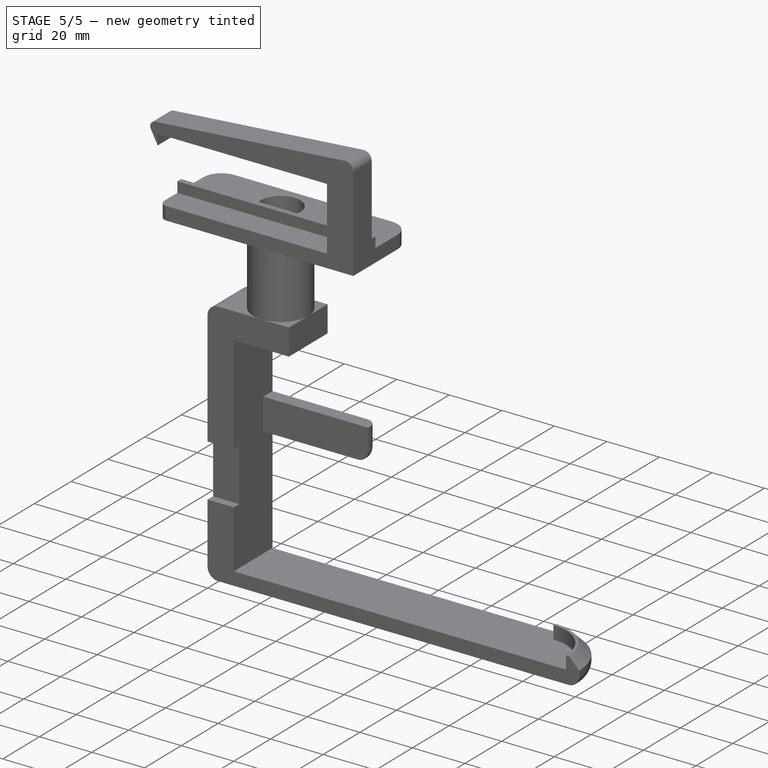
[diagram: stage 5 of 5 — iso view after this stage's code; geometry added in this stage tinted green]
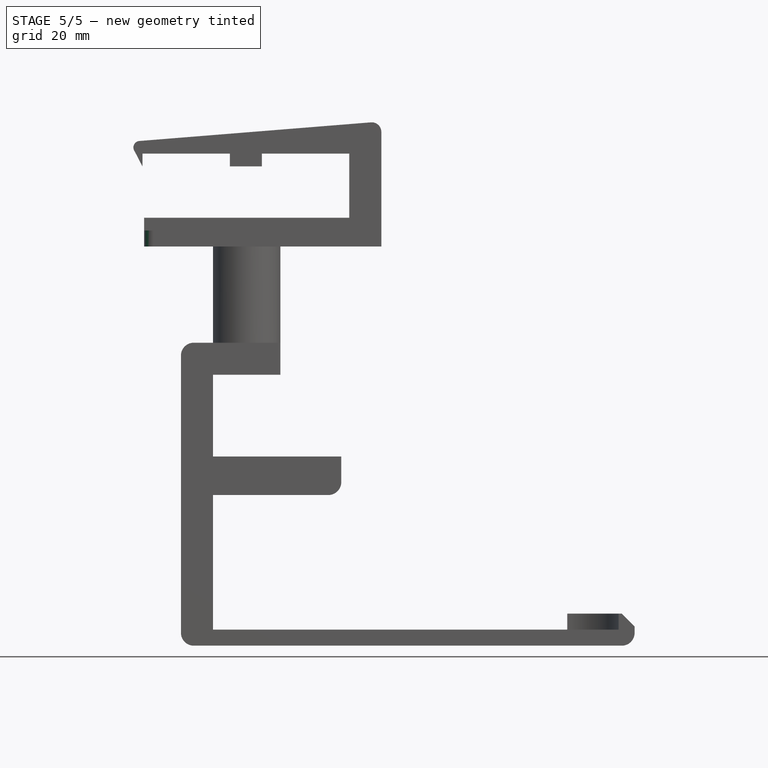
[diagram: stage 5 of 5 — front view after this stage's code; geometry added in this stage tinted green]
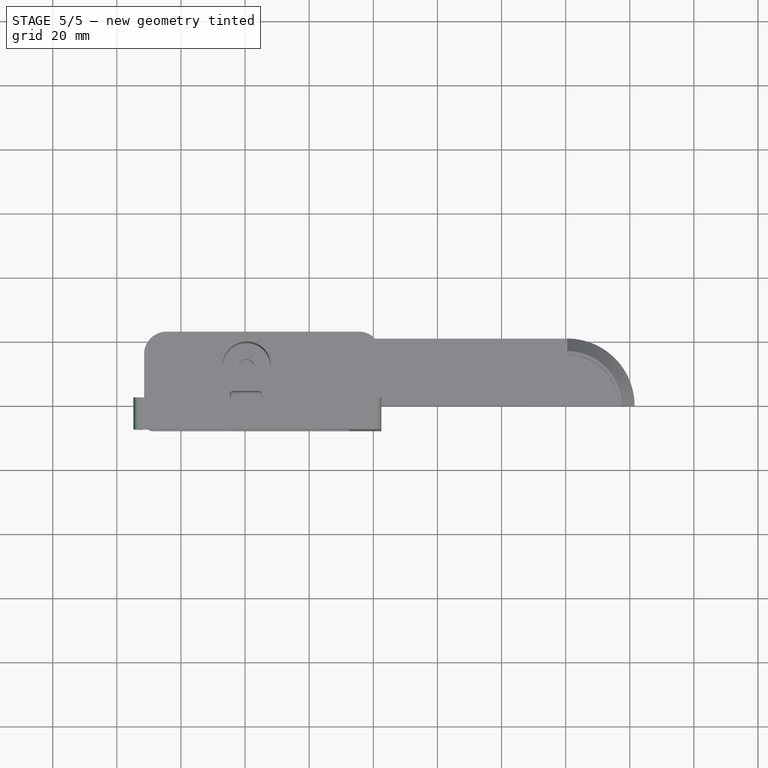
[diagram: stage 5 of 5 — top view after this stage's code; geometry added in this stage tinted green]
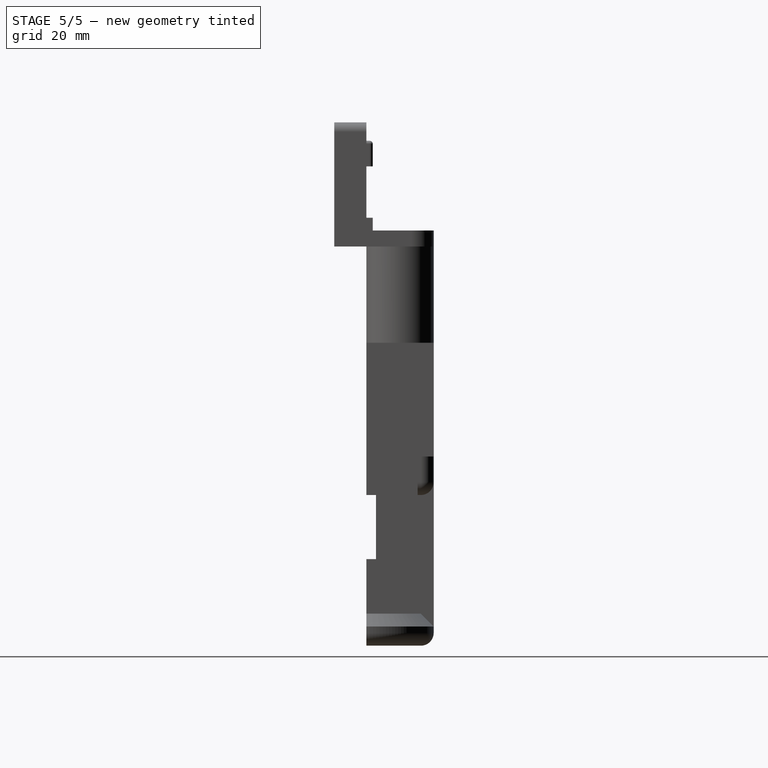
[diagram: stage 5 of 5 — right view after this stage's code; geometry added in this stage tinted green]
FEATURE [PartDesign::Fillet] Fillet008
  Base = -> Fillet007 [Edge48]
  BaseFeature = -> Fillet007
  Radius = 2
  Refine = true
  SupportTransform = false
  Suppressed = false
  UseAllEdges = false
FEATURE [PartDesign::Fillet] Fillet009
  Base = -> Fillet008 [Edge9]
  BaseFeature = -> Fillet008
  Radius = 3
  Refine = true
  SupportTransform = false
  Suppressed = false
  UseAllEdges = false
FEATURE [PartDesign::Fillet] Fillet010
  Base = -> Fillet009 [Edge99]
  BaseFeature = -> Fillet009
  Radius = 1
  Refine = true
  SupportTransform = false
  Suppressed = false
  UseAllEdges = false
FEATURE [PartDesign::Fillet] Fillet011
  Base = -> Fillet010 [Edge4]
  BaseFeature = -> Fillet010
  Radius = 1
  Refine = true
  SupportTransform = false
  Suppressed = false
  UseAllEdges = false
FEATURE [PartDesign::Fillet] Fillet012
  Base = -> Fillet011 [Edge37]
  BaseFeature = -> Fillet011
  Radius = 1
  Refine = true
  SupportTransform = false
  Suppressed = false
  UseAllEdges = false
FEATURE [PartDesign::Body] Body
  AllowCompound = false
  Group = -> [Sketch,Pad,Sketch001,Pad001,Sketch002,Pad002,Sketch004,Pad003,Sketch005,Pad004,Sketch006,Pad005,Sketch007,Pocket,Sketch008,Pad006,Chamfer,Fillet,Fillet001,Fillet002,Sketch009,Pocket001,Sketch010,Pad007,Fillet003,Fillet004,Sketch011,Pad008,Sketch012,Pad009,Fillet005,Fillet006,Fillet007,Fillet008,Fillet009,Fillet010,Fillet011,Fillet012]
  Origin = -> Origin
  Tip = -> Fillet012
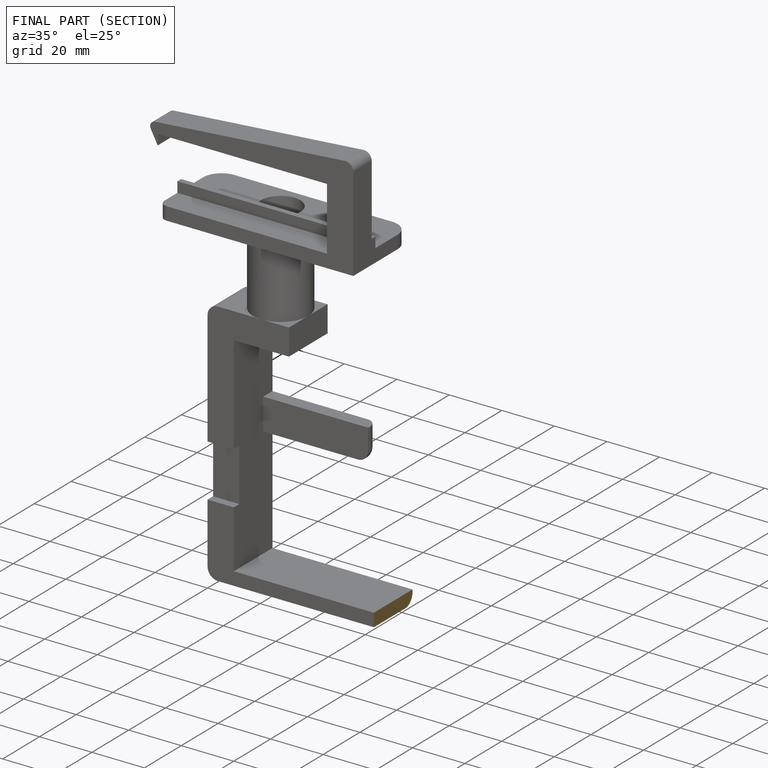
[diagram: finished part — half-section view (interior)]
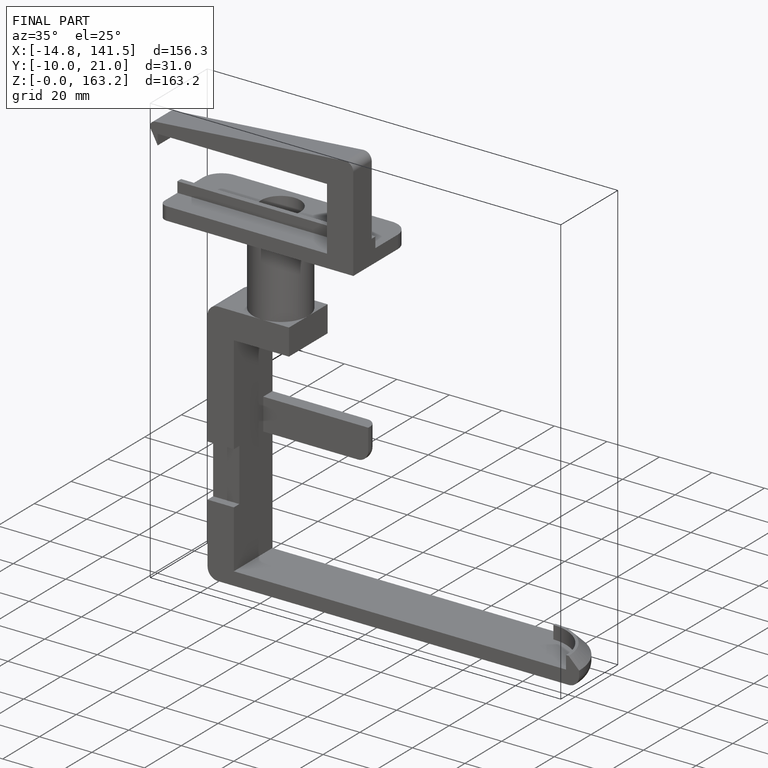
[diagram: finished part — iso view with bounding-box wireframe]
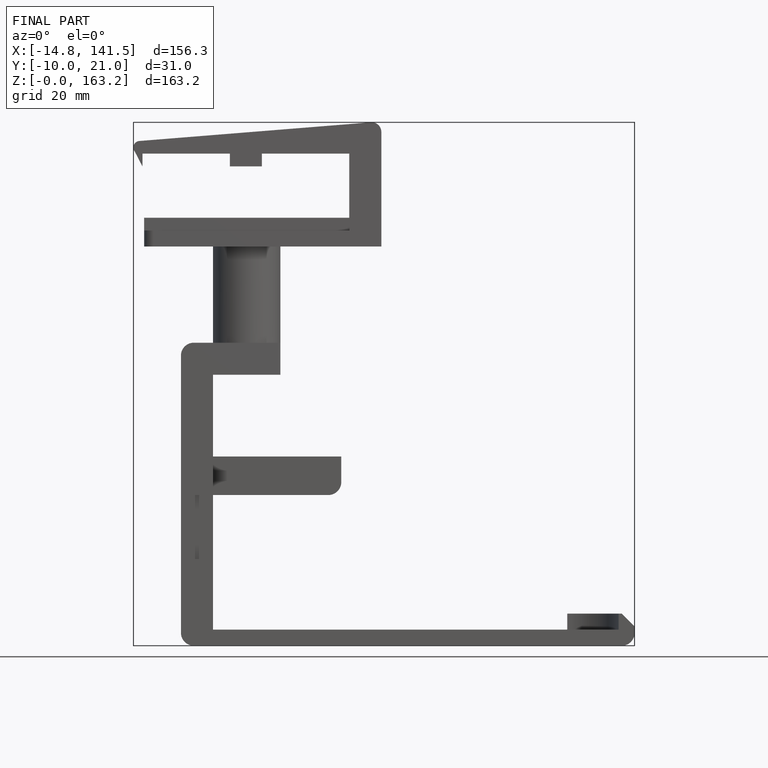
[diagram: finished part — front view with bounding-box wireframe]
